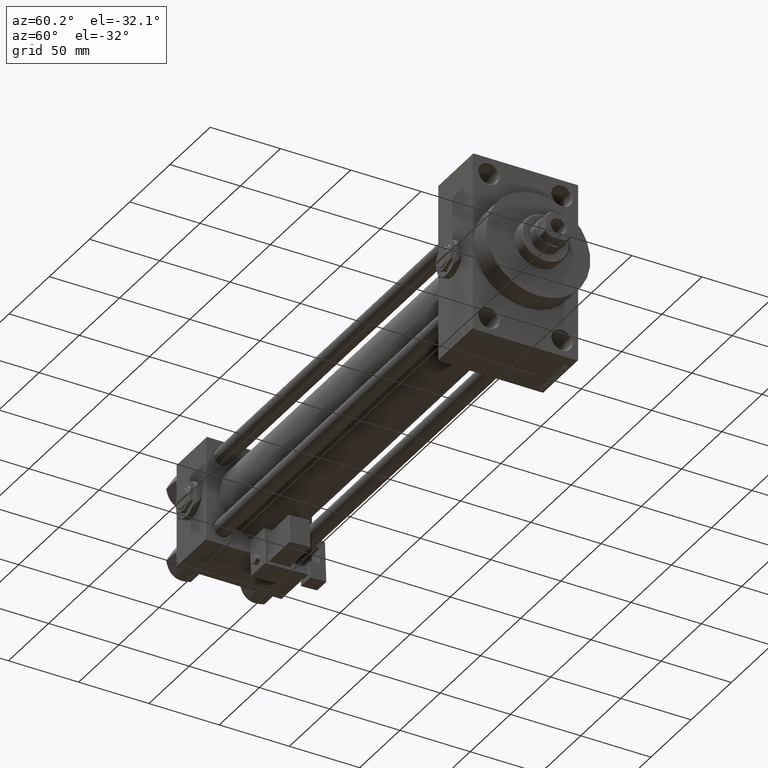
[diagram: clean part render]
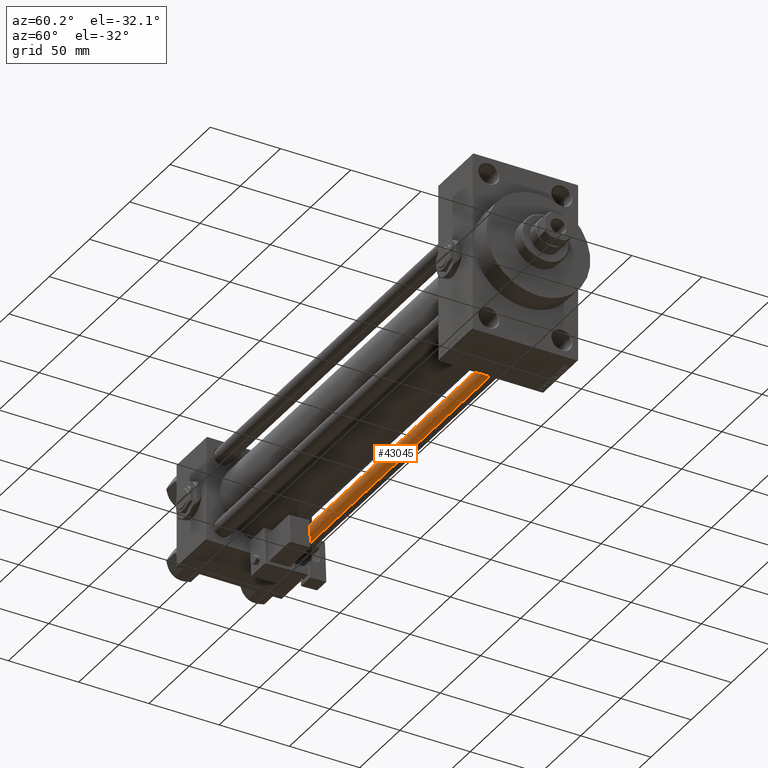
[diagram: same view with one face highlighted and labeled with its STEP entity id]
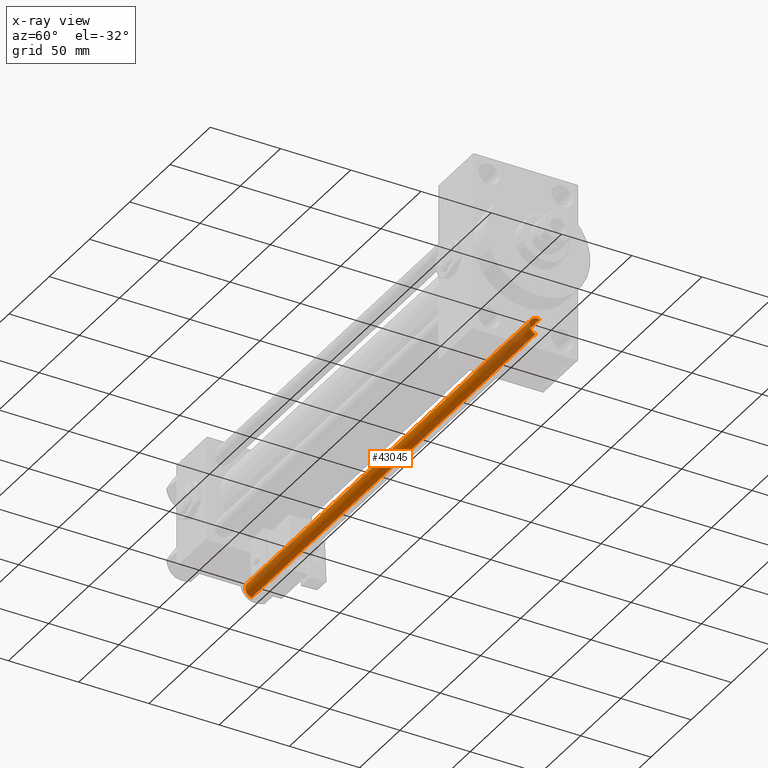
[diagram: x-ray of the same camera — body ghosted, the highlighted face saturated]
A machine part, auxiliary view. The second image highlights one B-rep face of the part: STEP entity #43045.
The next image is the same camera in x-ray: the body ghosted, the highlighted face saturated — about 22% of this face is hidden behind the body in this view.
In plain terms, the highlighted cylindrical surface (edge-blend (fillet) strip) has radius 6 mm, axis along (1, -0, 0).
Its self-contained STEP definition (entity closure, byte-faithful):
#1147 = CARTESIAN_POINT ( 'NONE',  ( 0.000000000000000000, 0.000000000000000000, 354.0000000000000000 ) ) ;
#2137 = CARTESIAN_POINT ( 'NONE',  ( -6.000000000000000888, 0.000000000000000000, 354.0000000000000000 ) ) ;
#3186 = ORIENTED_EDGE ( 'NONE', *, *, #22230, .F. ) ;
#3254 = VECTOR ( 'NONE', #36420, 1000.000000000000000 ) ;
#3447 = CARTESIAN_POINT ( 'NONE',  ( 6.000000000000000888, 7.347880794884120722E-16, 0.5000000000000559552 ) ) ;
#4390 = LINE ( 'NONE', #28349, #3254 ) ;
#6459 = DIRECTION ( 'NONE',  ( -0.000000000000000000, -0.000000000000000000, 1.000000000000000000 ) ) ;
#7379 = VECTOR ( 'NONE', #14139, 1000.000000000000000 ) ;
#7494 = AXIS2_PLACEMENT_3D ( 'NONE', #38526, #22902, #10679 ) ;
#7777 = CARTESIAN_POINT ( 'NONE',  ( -6.000000000000000888, 0.000000000000000000, 353.5000000000000000 ) ) ;
#10679 = DIRECTION ( 'NONE',  ( 1.000000000000000000, 0.000000000000000000, 0.000000000000000000 ) ) ;
#12165 = DIRECTION ( 'NONE',  ( 1.000000000000000000, 0.000000000000000000, 0.000000000000000000 ) ) ;
#12712 = CARTESIAN_POINT ( 'NONE',  ( 6.000000000000000888, 7.347880794884120722E-16, 353.5000000000000000 ) ) ;
#14139 = DIRECTION ( 'NONE',  ( -0.000000000000000000, -0.000000000000000000, -1.000000000000000000 ) ) ;
#17046 = DIRECTION ( 'NONE',  ( -1.000000000000000000, 0.000000000000000000, 0.000000000000000000 ) ) ;
#20439 = VERTEX_POINT ( 'NONE', #7777 ) ;
#22230 = EDGE_CURVE ( 'NONE', #32999, #22605, #4390, .T. ) ;
#22605 = VERTEX_POINT ( 'NONE', #3447 ) ;
#22902 = DIRECTION ( 'NONE',  ( 0.000000000000000000, 0.000000000000000000, -1.000000000000000000 ) ) ;
#23178 = CIRCLE ( 'NONE', #7494, 6.000000000000000888 ) ;
#24404 = EDGE_CURVE ( 'NONE', #32999, #20439, #23178, .T. ) ;
#24936 = EDGE_CURVE ( 'NONE', #20439, #45160, #49776, .T. ) ;
#27827 = ORIENTED_EDGE ( 'NONE', *, *, #24936, .T. ) ;
#28349 = CARTESIAN_POINT ( 'NONE',  ( 6.000000000000000888, 7.347880794884120722E-16, 354.0000000000000000 ) ) ;
#29436 = AXIS2_PLACEMENT_3D ( 'NONE', #42132, #6459, #12165 ) ;
#32199 = ORIENTED_EDGE ( 'NONE', *, *, #48583, .T. ) ;
#32918 = DIRECTION ( 'NONE',  ( -0.000000000000000000, -0.000000000000000000, -1.000000000000000000 ) ) ;
#32999 = VERTEX_POINT ( 'NONE', #12712 ) ;
#36420 = DIRECTION ( 'NONE',  ( -0.000000000000000000, -0.000000000000000000, -1.000000000000000000 ) ) ;
#37763 = CIRCLE ( 'NONE', #29436, 6.000000000000000888 ) ;
#38190 = ORIENTED_EDGE ( 'NONE', *, *, #24404, .T. ) ;
#38526 = CARTESIAN_POINT ( 'NONE',  ( 0.000000000000000000, 0.000000000000000000, 353.5000000000000000 ) ) ;
#39299 = CARTESIAN_POINT ( 'NONE',  ( -6.000000000000000888, 0.000000000000000000, 0.5000000000000559552 ) ) ;
#40989 = FACE_OUTER_BOUND ( 'NONE', #45281, .T. ) ;
#42132 = CARTESIAN_POINT ( 'NONE',  ( 0.000000000000000000, 0.000000000000000000, 0.5000000000000559552 ) ) ;
#43045 = ADVANCED_FACE ( 'NONE', ( #40989 ), #44634, .T. ) ;
#44183 = AXIS2_PLACEMENT_3D ( 'NONE', #1147, #32918, #17046 ) ;
#44634 = CYLINDRICAL_SURFACE ( 'NONE', #44183, 6.000000000000000888 ) ;
#45160 = VERTEX_POINT ( 'NONE', #39299 ) ;
#45281 = EDGE_LOOP ( 'NONE', ( #3186, #38190, #27827, #32199 ) ) ;
#48583 = EDGE_CURVE ( 'NONE', #45160, #22605, #37763, .T. ) ;
#49776 = LINE ( 'NONE', #2137, #7379 ) ;